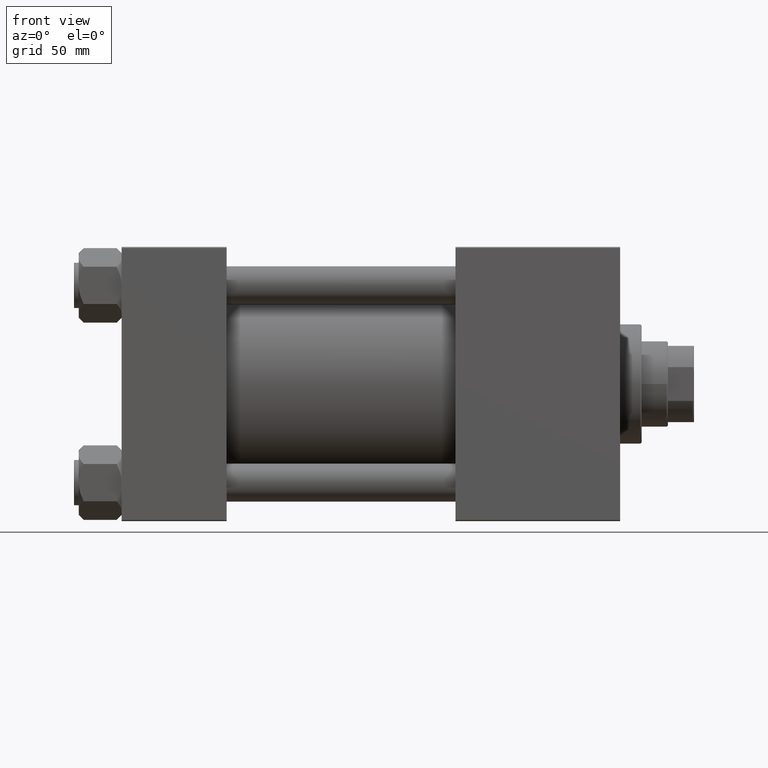
[diagram: clean part render]
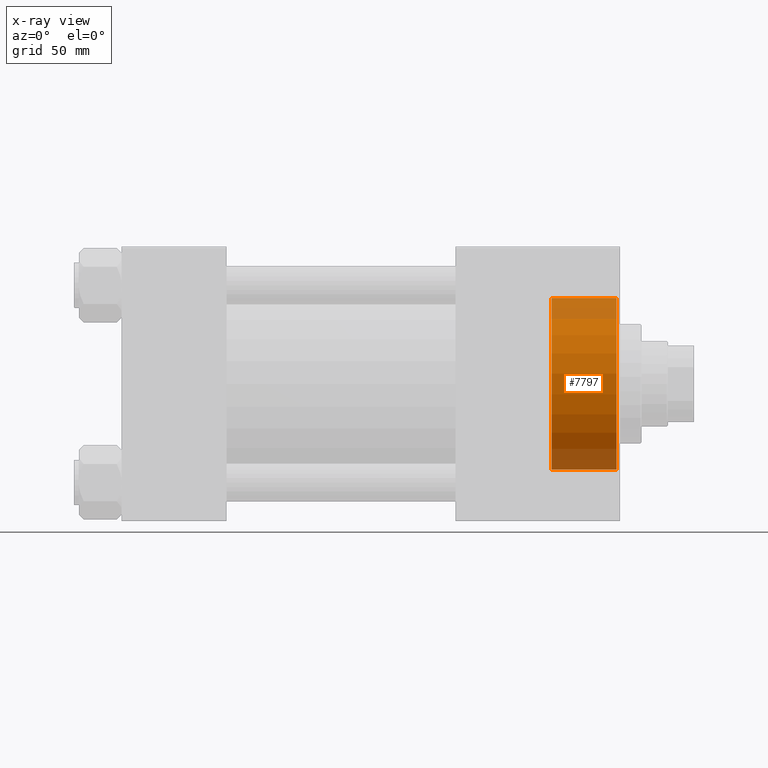
[diagram: x-ray — body ghosted, one internal face saturated and labeled with its STEP entity id]
A machine part, front view, then the same camera in x-ray: the body is ghosted and one INTERNAL B-rep face — a face not visible from any outside direction — is saturated and labeled: STEP entity #7797.
In plain terms, the highlighted cylindrical surface (partial cylindrical patch) has radius 36 mm, axis along (1, 0, 0).
Its self-contained STEP definition (entity closure, byte-faithful):
#4113 = DIRECTION ( 'NONE',  ( 0.000000000000000000, 0.000000000000000000, -1.000000000000000000 ) ) ;
#7728 = CARTESIAN_POINT ( 'NONE',  ( 207.5000000000000000, 0.000000000000000000, 0.000000000000000000 ) ) ;
#7797 = ADVANCED_FACE ( 'NONE', ( #23493 ), #30936, .F. ) ;
#8125 = VERTEX_POINT ( 'NONE', #15515 ) ;
#8137 = CARTESIAN_POINT ( 'NONE',  ( 180.3000000000000114, 0.000000000000000000, 0.000000000000000000 ) ) ;
#8710 = EDGE_LOOP ( 'NONE', ( #41162, #46851, #25371, #34559 ) ) ;
#9580 = VERTEX_POINT ( 'NONE', #49907 ) ;
#10352 = CARTESIAN_POINT ( 'NONE',  ( 180.3000000000000114, 0.000000000000000000, -36.00000000000000000 ) ) ;
#10970 = EDGE_CURVE ( 'NONE', #40598, #46321, #29876, .T. ) ;
#15515 = CARTESIAN_POINT ( 'NONE',  ( 207.5000000000000000, 0.000000000000000000, -36.00000000000000000 ) ) ;
#16850 = LINE ( 'NONE', #32467, #42375 ) ;
#18034 = EDGE_CURVE ( 'NONE', #40598, #9580, #16850, .T. ) ;
#18651 = DIRECTION ( 'NONE',  ( 1.000000000000000000, -0.000000000000000000, -0.000000000000000000 ) ) ;
#18817 = VECTOR ( 'NONE', #22103, 1000.000000000000000 ) ;
#19492 = CARTESIAN_POINT ( 'NONE',  ( 180.3000000000000114, 0.000000000000000000, 0.000000000000000000 ) ) ;
#19745 = DIRECTION ( 'NONE',  ( 0.000000000000000000, 0.000000000000000000, 1.000000000000000000 ) ) ;
#21382 = EDGE_CURVE ( 'NONE', #9580, #8125, #35815, .T. ) ;
#22103 = DIRECTION ( 'NONE',  ( 1.000000000000000000, -0.000000000000000000, -0.000000000000000000 ) ) ;
#23493 = FACE_OUTER_BOUND ( 'NONE', #8710, .T. ) ;
#23938 = EDGE_CURVE ( 'NONE', #46321, #8125, #42066, .T. ) ;
#25371 = ORIENTED_EDGE ( 'NONE', *, *, #21382, .T. ) ;
#28860 = DIRECTION ( 'NONE',  ( 1.000000000000000000, -0.000000000000000000, -0.000000000000000000 ) ) ;
#29876 = CIRCLE ( 'NONE', #32382, 36.00000000000000000 ) ;
#30507 = DIRECTION ( 'NONE',  ( 1.000000000000000000, 0.000000000000000000, 0.000000000000000000 ) ) ;
#30936 = CYLINDRICAL_SURFACE ( 'NONE', #47781, 36.00000000000000000 ) ;
#32382 = AXIS2_PLACEMENT_3D ( 'NONE', #19492, #30507, #4113 ) ;
#32467 = CARTESIAN_POINT ( 'NONE',  ( 180.3000000000000114, 4.408728476930470856E-15, 36.00000000000000000 ) ) ;
#33410 = CARTESIAN_POINT ( 'NONE',  ( 180.3000000000000114, 0.000000000000000000, -36.00000000000000000 ) ) ;
#34559 = ORIENTED_EDGE ( 'NONE', *, *, #23938, .F. ) ;
#35815 = CIRCLE ( 'NONE', #42368, 36.00000000000000000 ) ;
#38952 = DIRECTION ( 'NONE',  ( 1.000000000000000000, 0.000000000000000000, 0.000000000000000000 ) ) ;
#39925 = CARTESIAN_POINT ( 'NONE',  ( 180.3000000000000114, 4.408728476930470856E-15, 36.00000000000000000 ) ) ;
#40598 = VERTEX_POINT ( 'NONE', #39925 ) ;
#41162 = ORIENTED_EDGE ( 'NONE', *, *, #10970, .F. ) ;
#42066 = LINE ( 'NONE', #10352, #18817 ) ;
#42368 = AXIS2_PLACEMENT_3D ( 'NONE', #7728, #38952, #19745 ) ;
#42375 = VECTOR ( 'NONE', #28860, 1000.000000000000000 ) ;
#42444 = DIRECTION ( 'NONE',  ( 0.000000000000000000, 0.000000000000000000, -1.000000000000000000 ) ) ;
#46321 = VERTEX_POINT ( 'NONE', #33410 ) ;
#46851 = ORIENTED_EDGE ( 'NONE', *, *, #18034, .T. ) ;
#47781 = AXIS2_PLACEMENT_3D ( 'NONE', #8137, #18651, #42444 ) ;
#49907 = CARTESIAN_POINT ( 'NONE',  ( 207.5000000000000000, 4.408728476930470856E-15, 36.00000000000000000 ) ) ;